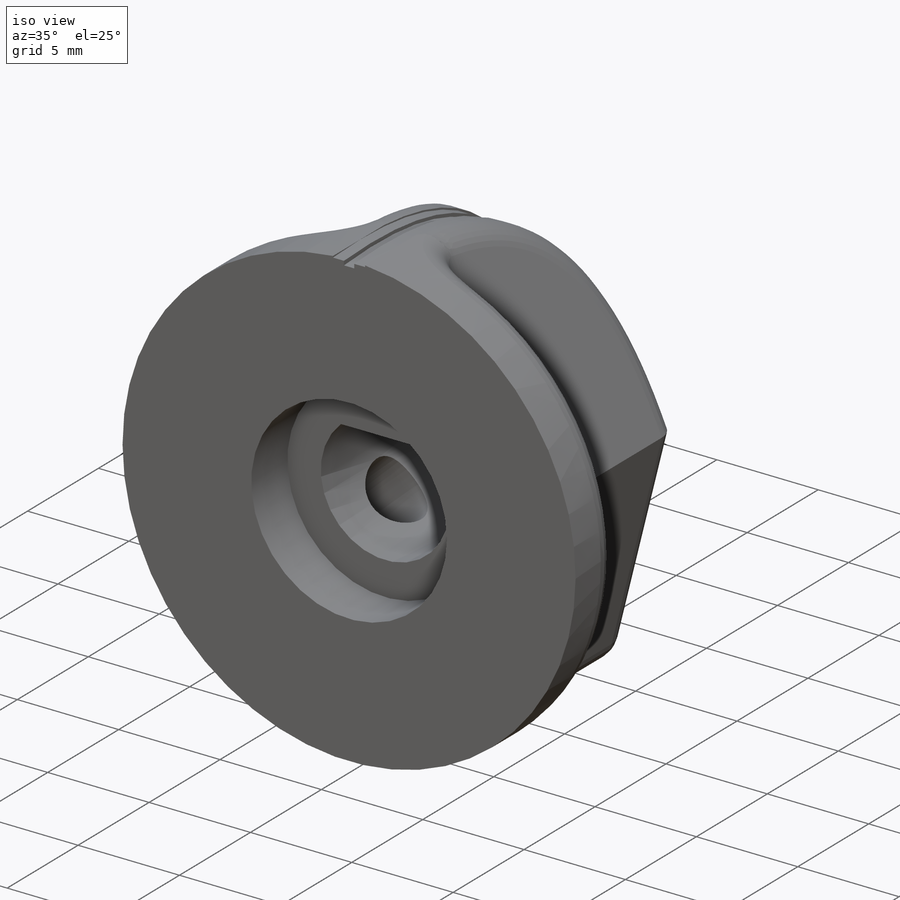
[diagram: iso view]
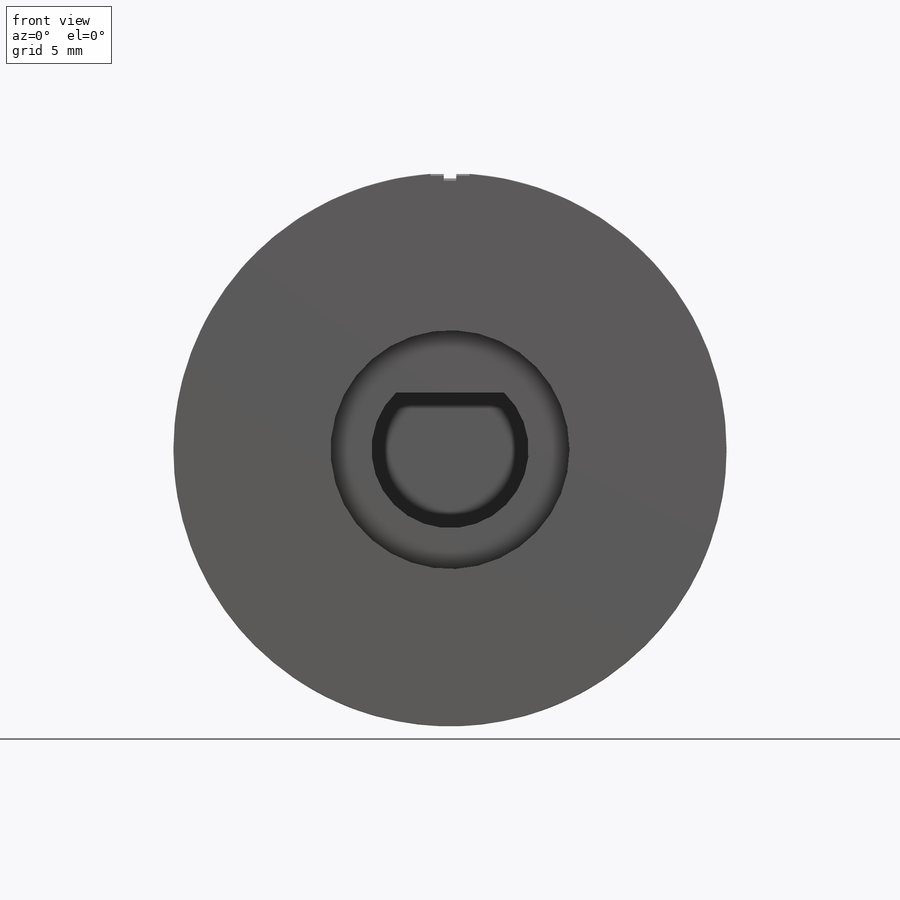
[diagram: front view]
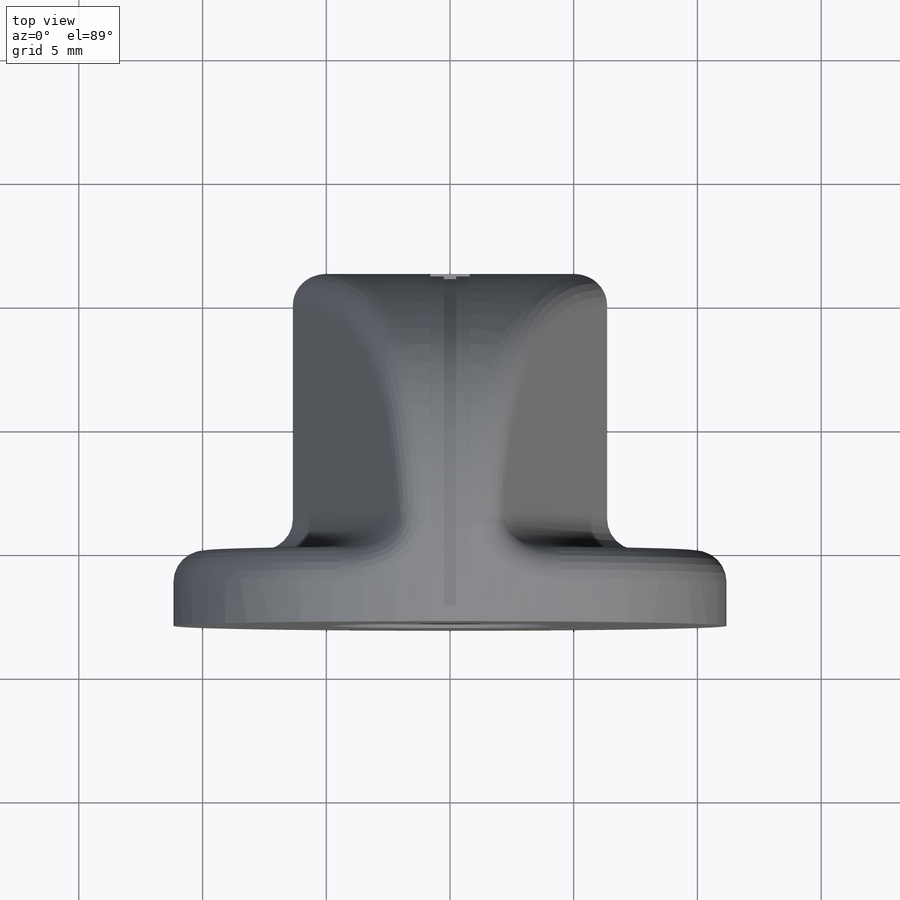
[diagram: top view]
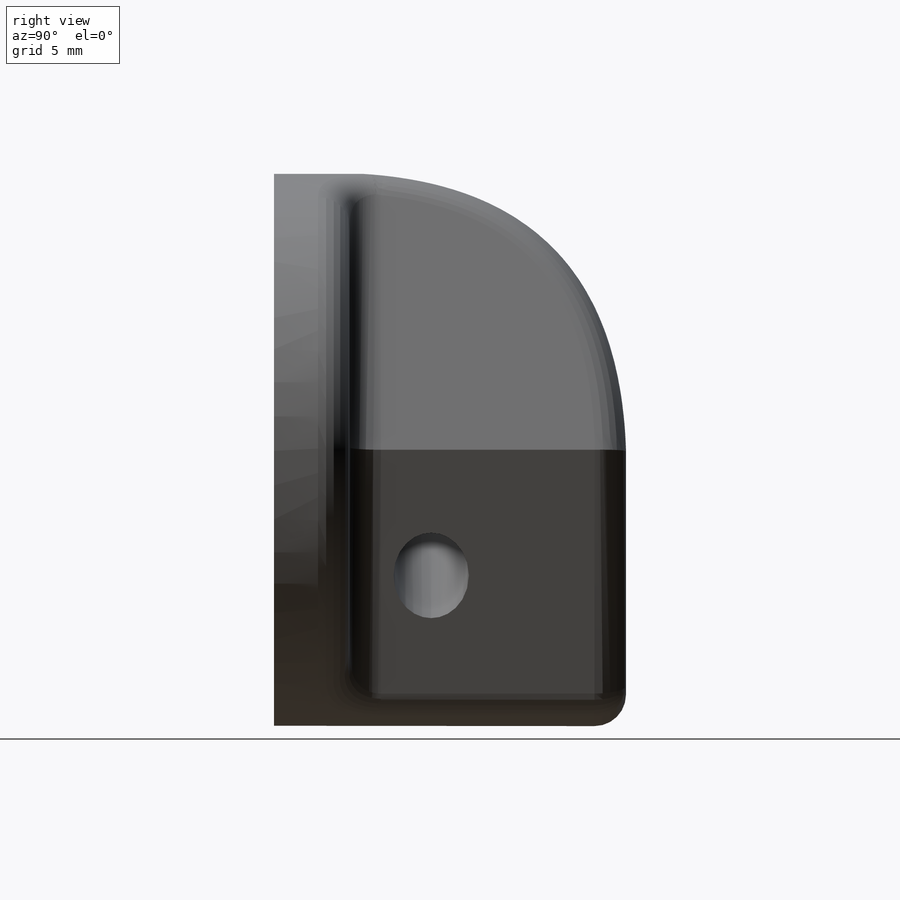
[diagram: right view]
SOLIDWORKS PART (.sldprt)
format: sldprt  version: not decoded by parser v0  size: 847,360 bytes
history: native  units: mm
features: sketch x11, cut_extrude x8, extrude x3, fillet x3, material x1, plane x1, mirror x1 (+11 scaffold rows collapsed)
feature tree (39):
  scaffold x11  (default folders/planes/origin — collapsed)
  material  "PMMA"
  sketch  "Skica2"  dims[D1=~30.904966mm]
  extrude  "Přidat vysunutím2"  Depth=3.048mm
  sketch  "Skica4"  dims[D1=12.7mm D2=3.556mm]
  extrude  "Přidat vysunutím3"  Depth=11.176mm
  sketch  "Skica6"  dims[D1=0.0mm D2=0.0mm]
  cut_extrude  "Odebrat vysunutím4"  Depth=11.176mm
  sketch  "Skica7"  dims[D1=0.0mm]
  cut_extrude  "Odebrat vysunutím5"  Depth=11.176mm
  sketch  "Skica8"  dims[D1=~3.680836mm]
  extrude  "Přidat vysunutím4"  Depth=11.176mm
  sketch  "Skica9"
  cut_extrude  "Odebrat vysunutím6"  Depth=12.7mm
  sketch  "Skica10"  dims[D1=5.4864mm]
  cut_extrude  "Odebrat vysunutím7"  Depth=12.7mm
  sketch  "Skica11"  dims[D1=~5.145172mm]
  cut_extrude  "Odebrat vysunutím8"  Depth=2.54mm
  plane  "Rovina1"
  sketch  "Skica12"  dims[D1=6.35mm]
  cut_extrude  "Odebrat vysunutím9"  [1 undecoded]
  mirror  "Zrcadlit1"
  sketch  "Skica13"  dims[D1=0.1016mm D2=0.1016mm]
  cut_extrude  "Odebrat vysunutím10"  Depth=1.5875mm
  sketch  "Skica14"  dims[D1=0.2032mm D2=0.2032mm]
  cut_extrude  "Odebrat vysunutím11"  Depth=0.508mm
  fillet  "Zaoblit2"  Radius=1.27mm
  fillet  "Zaoblit3"  Radius=1.27mm
  fillet  "Zaoblit5"  Radius=1.27mm
decode coverage: 23 of 26 modeling features carry decoded parameters
note: ~ marks probable driven/reference dimensions
note: 1 parameter value undecoded
note: suppression state not decoded; provenance and decode notes live in map.json
